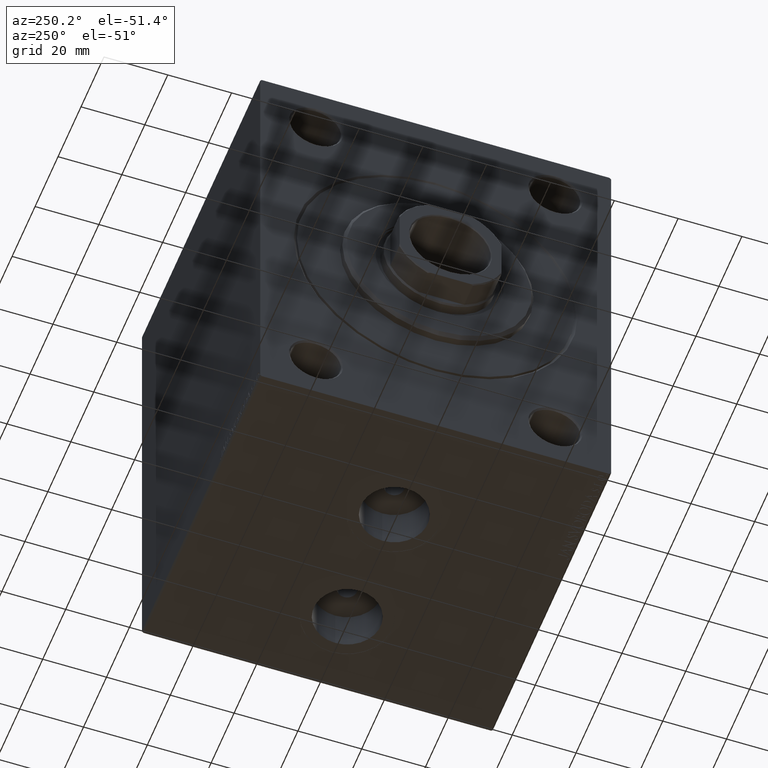
[diagram: clean part render]
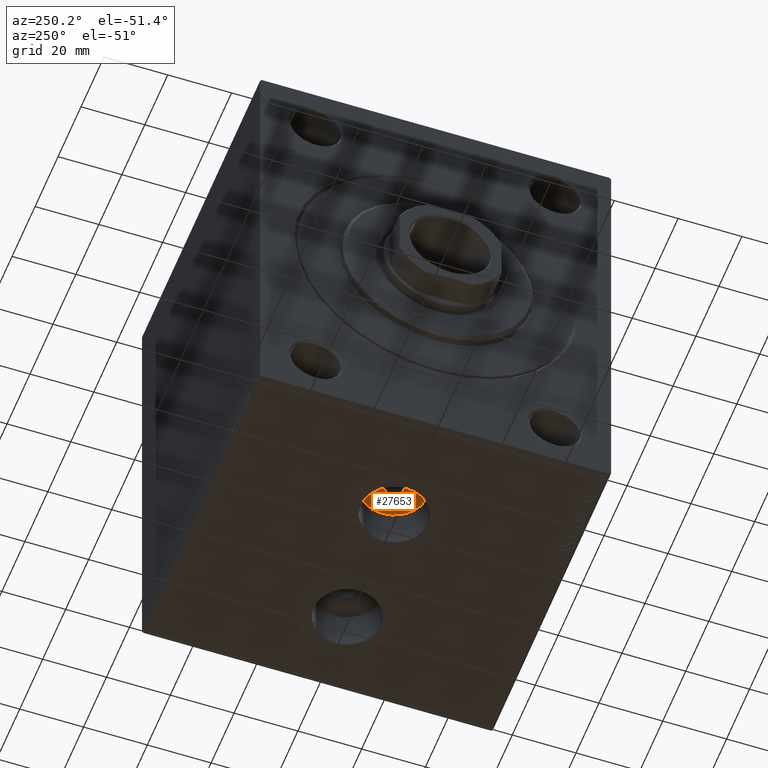
[diagram: same view with one face highlighted and labeled with its STEP entity id]
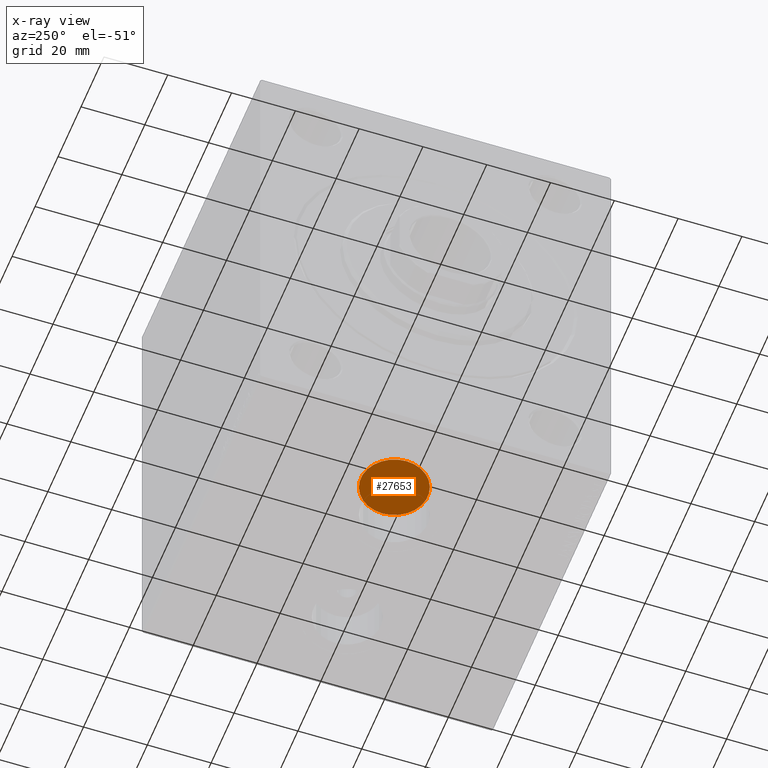
[diagram: x-ray of the same camera — body ghosted, the highlighted face saturated]
A machine part, auxiliary view. The second image highlights one B-rep face of the part: STEP entity #27653.
The next image is the same camera in x-ray: the body ghosted, the highlighted face saturated — about 0% of this face is hidden behind the body in this view.
In plain terms, the highlighted planar face has unit normal (0, 0, -1).
Its self-contained STEP definition (entity closure, byte-faithful):
#739 = CARTESIAN_POINT ( 'NONE',  ( 36.00000000000000000, 4.206130763976431907E-15, -57.00000000000000000 ) ) ;
#2306 = PLANE ( 'NONE',  #42643 ) ;
#2379 = VERTEX_POINT ( 'NONE', #5635 ) ;
#2422 = VERTEX_POINT ( 'NONE', #26568 ) ;
#2455 = ORIENTED_EDGE ( 'NONE', *, *, #13879, .T. ) ;
#2528 = DIRECTION ( 'NONE',  ( 0.000000000000000000, 0.000000000000000000, -1.000000000000000000 ) ) ;
#5635 = CARTESIAN_POINT ( 'NONE',  ( 32.99999999999999289, 4.206130763976431907E-15, -57.00000000000000000 ) ) ;
#7427 = ORIENTED_EDGE ( 'NONE', *, *, #27602, .T. ) ;
#7891 = ORIENTED_EDGE ( 'NONE', *, *, #12871, .F. ) ;
#9941 = DIRECTION ( 'NONE',  ( -1.000000000000000000, 0.000000000000000000, 0.000000000000000000 ) ) ;
#10555 = EDGE_LOOP ( 'NONE', ( #2455, #7427 ) ) ;
#12871 = EDGE_CURVE ( 'NONE', #41955, #2379, #30080, .T. ) ;
#13879 = EDGE_CURVE ( 'NONE', #41080, #2422, #16180, .T. ) ;
#16180 = CIRCLE ( 'NONE', #18344, 10.48000000000000043 ) ;
#16336 = CARTESIAN_POINT ( 'NONE',  ( 36.00000000000000000, 4.206130763976431907E-15, -57.00000000000000000 ) ) ;
#18344 = AXIS2_PLACEMENT_3D ( 'NONE', #30863, #38675, #9941 ) ;
#19047 = CIRCLE ( 'NONE', #34485, 3.000000000000002665 ) ;
#19869 = CIRCLE ( 'NONE', #38961, 10.48000000000000043 ) ;
#20756 = EDGE_CURVE ( 'NONE', #2379, #41955, #19047, .T. ) ;
#24661 = DIRECTION ( 'NONE',  ( -1.000000000000000000, 0.000000000000000000, 0.000000000000000000 ) ) ;
#25067 = CARTESIAN_POINT ( 'NONE',  ( 36.00000000000000000, 4.206130763976431907E-15, -57.00000000000000000 ) ) ;
#26568 = CARTESIAN_POINT ( 'NONE',  ( 46.47999999999999687, 5.489560609482857396E-15, -57.00000000000000000 ) ) ;
#27344 = DIRECTION ( 'NONE',  ( 0.000000000000000000, 0.000000000000000000, -1.000000000000000000 ) ) ;
#27561 = CARTESIAN_POINT ( 'NONE',  ( 36.00000000000000000, 4.206130763976431907E-15, -57.00000000000000000 ) ) ;
#27602 = EDGE_CURVE ( 'NONE', #2422, #41080, #19869, .T. ) ;
#27653 = ADVANCED_FACE ( 'NONE', ( #33822, #31234 ), #2306, .T. ) ;
#27836 = AXIS2_PLACEMENT_3D ( 'NONE', #739, #35935, #24661 ) ;
#30080 = CIRCLE ( 'NONE', #27836, 3.000000000000002665 ) ;
#30345 = DIRECTION ( 'NONE',  ( -1.000000000000000000, 0.000000000000000000, -0.000000000000000000 ) ) ;
#30863 = CARTESIAN_POINT ( 'NONE',  ( 36.00000000000000000, 4.206130763976431907E-15, -57.00000000000000000 ) ) ;
#31234 = FACE_OUTER_BOUND ( 'NONE', #10555, .T. ) ;
#33822 = FACE_BOUND ( 'NONE', #40654, .T. ) ;
#34485 = AXIS2_PLACEMENT_3D ( 'NONE', #25067, #35883, #39327 ) ;
#35883 = DIRECTION ( 'NONE',  ( 0.000000000000000000, 0.000000000000000000, -1.000000000000000000 ) ) ;
#35935 = DIRECTION ( 'NONE',  ( 0.000000000000000000, 0.000000000000000000, -1.000000000000000000 ) ) ;
#38675 = DIRECTION ( 'NONE',  ( 0.000000000000000000, 0.000000000000000000, -1.000000000000000000 ) ) ;
#38961 = AXIS2_PLACEMENT_3D ( 'NONE', #27561, #27344, #44845 ) ;
#39327 = DIRECTION ( 'NONE',  ( -1.000000000000000000, 0.000000000000000000, 0.000000000000000000 ) ) ;
#40654 = EDGE_LOOP ( 'NONE', ( #45337, #7891 ) ) ;
#41080 = VERTEX_POINT ( 'NONE', #43165 ) ;
#41955 = VERTEX_POINT ( 'NONE', #45106 ) ;
#42643 = AXIS2_PLACEMENT_3D ( 'NONE', #16336, #2528, #30345 ) ;
#43165 = CARTESIAN_POINT ( 'NONE',  ( 25.51999999999999602, 4.206130763976431907E-15, -57.00000000000000000 ) ) ;
#44845 = DIRECTION ( 'NONE',  ( -1.000000000000000000, 0.000000000000000000, 0.000000000000000000 ) ) ;
#45106 = CARTESIAN_POINT ( 'NONE',  ( 39.00000000000000000, 4.573524803720637352E-15, -57.00000000000000000 ) ) ;
#45337 = ORIENTED_EDGE ( 'NONE', *, *, #20756, .F. ) ;